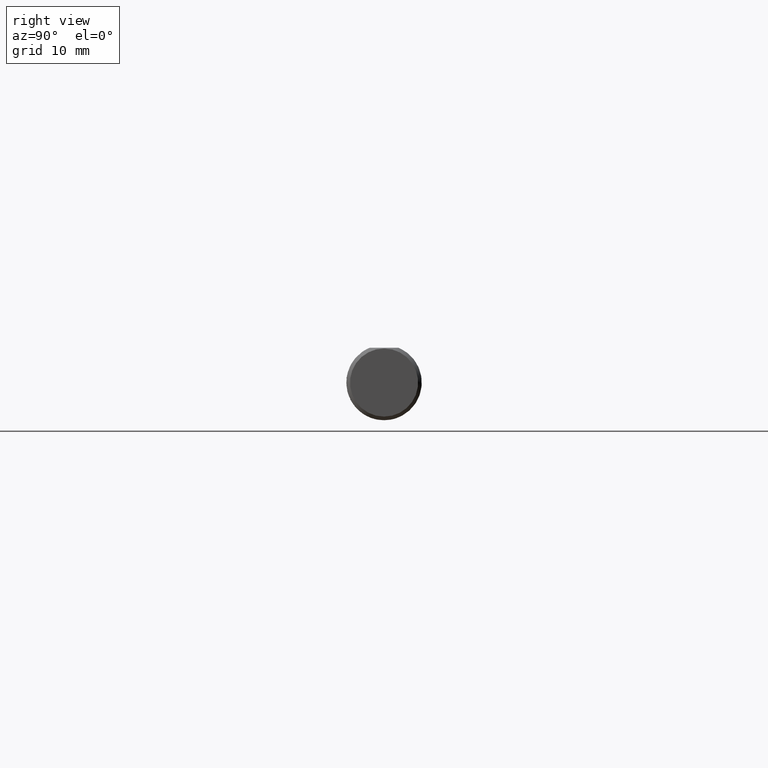
[diagram: clean part render]
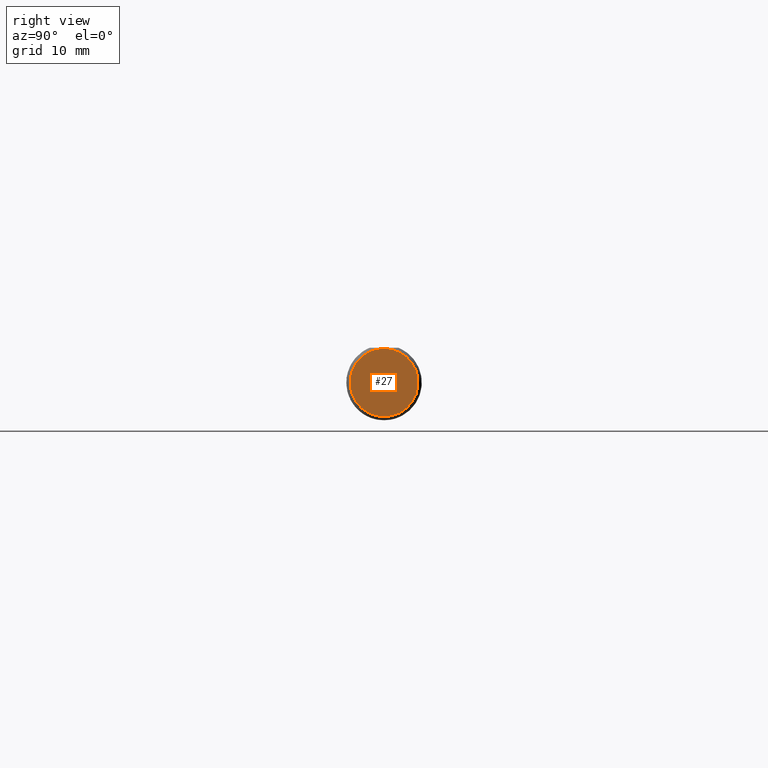
[diagram: same view with one face highlighted and labeled with its STEP entity id]
A machine part, right view. The second image highlights one B-rep face of the part: STEP entity #27.
In plain terms, the highlighted planar face has unit normal (-1, -0, 0).
Its self-contained STEP definition (entity closure, byte-faithful):
#14 = DIRECTION ( 'NONE',  ( 1.742939658942782311E-16, -1.000000000000000000, 0.000000000000000000 ) ) ;
#27 = ADVANCED_FACE ( 'NONE', ( #137 ), #172, .F. ) ;
#39 = VERTEX_POINT ( 'NONE', #66 ) ;
#66 = CARTESIAN_POINT ( 'NONE',  ( -4.695363739110452099E-17, -7.582401355855259480E-33, 0.1410999999999975052 ) ) ;
#68 = DIRECTION ( 'NONE',  ( 1.000000000000000000, 1.742939658942782065E-16, 0.000000000000000000 ) ) ;
#137 = FACE_OUTER_BOUND ( 'NONE', #248, .T. ) ;
#172 = PLANE ( 'NONE',  #371 ) ;
#196 = ORIENTED_EDGE ( 'NONE', *, *, #348, .T. ) ;
#220 = EDGE_CURVE ( 'NONE', #39, #365, #673, .T. ) ;
#245 = CARTESIAN_POINT ( 'NONE',  ( -4.695363739110451482E-17, -2.459287858768216081E-17, 0.000000000000000000 ) ) ;
#248 = EDGE_LOOP ( 'NONE', ( #366, #196 ) ) ;
#272 = CIRCLE ( 'NONE', #314, 0.1410999999999975052 ) ;
#314 = AXIS2_PLACEMENT_3D ( 'NONE', #245, #68, #14 ) ;
#347 = CARTESIAN_POINT ( 'NONE',  ( -9.678837909573454915E-17, 0.2776584335525523750, -0.1560999999999999888 ) ) ;
#348 = EDGE_CURVE ( 'NONE', #365, #39, #272, .T. ) ;
#365 = VERTEX_POINT ( 'NONE', #588 ) ;
#366 = ORIENTED_EDGE ( 'NONE', *, *, #220, .T. ) ;
#371 = AXIS2_PLACEMENT_3D ( 'NONE', #347, #595, #400 ) ;
#400 = DIRECTION ( 'NONE',  ( 1.742939658942782065E-16, -1.000000000000000000, 0.000000000000000000 ) ) ;
#462 = DIRECTION ( 'NONE',  ( 1.000000000000000000, 1.742939658942782065E-16, 0.000000000000000000 ) ) ;
#588 = CARTESIAN_POINT ( 'NONE',  ( -4.695363739110452099E-17, 1.819825143532954455E-17, -0.1410999999999975052 ) ) ;
#595 = DIRECTION ( 'NONE',  ( -1.000000000000000000, -1.742939658942782065E-16, 0.000000000000000000 ) ) ;
#617 = DIRECTION ( 'NONE',  ( 1.742939658942782311E-16, -1.000000000000000000, 0.000000000000000000 ) ) ;
#671 = CARTESIAN_POINT ( 'NONE',  ( -4.695363739110451482E-17, -2.459287858768216081E-17, 0.000000000000000000 ) ) ;
#672 = AXIS2_PLACEMENT_3D ( 'NONE', #671, #462, #617 ) ;
#673 = CIRCLE ( 'NONE', #672, 0.1410999999999975052 ) ;